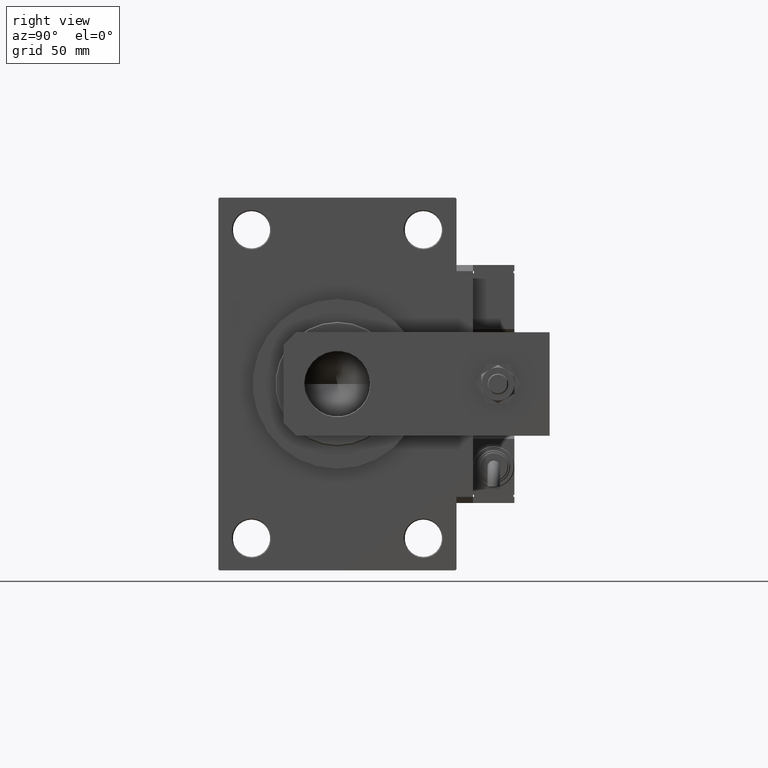
[diagram: clean part render]
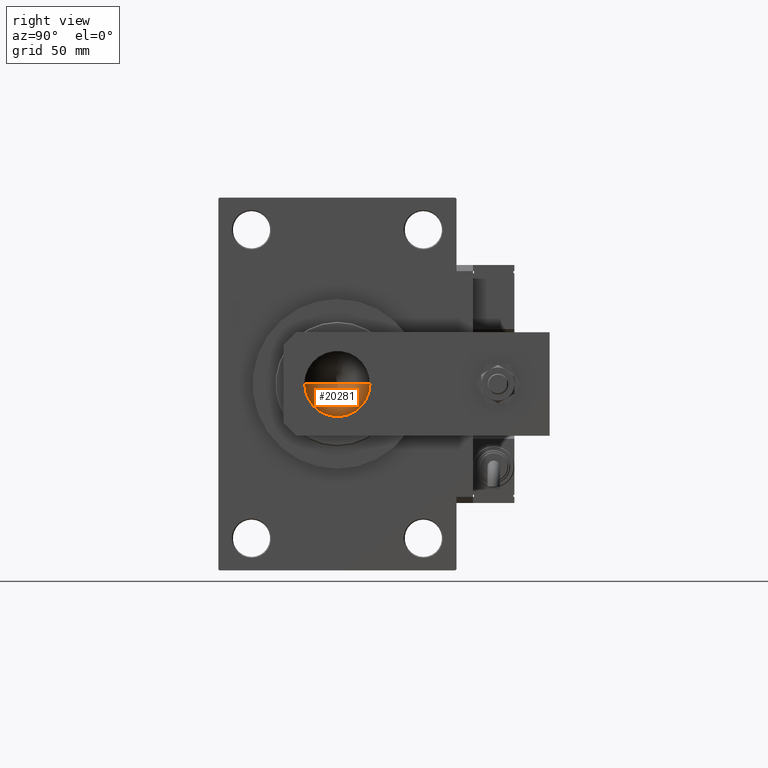
[diagram: same view with one face highlighted and labeled with its STEP entity id]
A machine part, right view. The second image highlights one B-rep face of the part: STEP entity #20281.
In plain terms, the highlighted conical surface has half-angle 59 deg.
Its self-contained STEP definition (entity closure, byte-faithful):
#1735 = CARTESIAN_POINT ( 'NONE',  ( 15.74999999999998934, 0.000000000000000000, 111.0000000000000142 ) ) ;
#1811 = EDGE_CURVE ( 'NONE', #13358, #13779, #23235, .T. ) ;
#2254 = ORIENTED_EDGE ( 'NONE', *, *, #49909, .F. ) ;
#2867 = AXIS2_PLACEMENT_3D ( 'NONE', #9329, #55361, #12982 ) ;
#6805 = ORIENTED_EDGE ( 'NONE', *, *, #30809, .T. ) ;
#9150 = CONICAL_SURFACE ( 'NONE', #2867, 15.74999999999998934, 1.029744258676652979 ) ;
#9329 = CARTESIAN_POINT ( 'NONE',  ( 0.000000000000000000, 0.000000000000000000, 111.0000000000000142 ) ) ;
#11577 = CARTESIAN_POINT ( 'NONE',  ( 0.000000000000000000, 0.000000000000000000, 111.0000000000000142 ) ) ;
#12946 = VECTOR ( 'NONE', #17571, 1000.000000000000000 ) ;
#12982 = DIRECTION ( 'NONE',  ( 1.000000000000000000, 0.000000000000000000, 0.000000000000000000 ) ) ;
#13358 = VERTEX_POINT ( 'NONE', #52378 ) ;
#13538 = VERTEX_POINT ( 'NONE', #44492 ) ;
#13779 = VERTEX_POINT ( 'NONE', #50856 ) ;
#17571 = DIRECTION ( 'NONE',  ( -0.8571673007021115565, 1.049727191138617710E-16, 0.5150380749100554878 ) ) ;
#18868 = DIRECTION ( 'NONE',  ( 0.8571673007021115565, 0.000000000000000000, 0.5150380749100554878 ) ) ;
#19425 = LINE ( 'NONE', #1735, #45312 ) ;
#20281 = ADVANCED_FACE ( 'NONE', ( #47758 ), #9150, .F. ) ;
#23235 = CIRCLE ( 'NONE', #42971, 15.74999999999998934 ) ;
#30278 = ORIENTED_EDGE ( 'NONE', *, *, #1811, .T. ) ;
#30809 = EDGE_CURVE ( 'NONE', #13538, #13358, #19425, .T. ) ;
#35812 = LINE ( 'NONE', #40274, #12946 ) ;
#37690 = DIRECTION ( 'NONE',  ( 1.000000000000000000, 0.000000000000000000, 0.000000000000000000 ) ) ;
#40274 = CARTESIAN_POINT ( 'NONE',  ( -15.74999999999998934, 1.928818708657080161E-15, 111.0000000000000142 ) ) ;
#42971 = AXIS2_PLACEMENT_3D ( 'NONE', #11577, #45798, #37690 ) ;
#44492 = CARTESIAN_POINT ( 'NONE',  ( -1.497379240617067851E-14, 0.000000000000000000, 101.5364452503159214 ) ) ;
#45312 = VECTOR ( 'NONE', #18868, 1000.000000000000000 ) ;
#45798 = DIRECTION ( 'NONE',  ( -0.000000000000000000, -0.000000000000000000, 1.000000000000000000 ) ) ;
#47758 = FACE_OUTER_BOUND ( 'NONE', #50137, .T. ) ;
#49909 = EDGE_CURVE ( 'NONE', #13538, #13779, #35812, .T. ) ;
#50137 = EDGE_LOOP ( 'NONE', ( #2254, #6805, #30278 ) ) ;
#50856 = CARTESIAN_POINT ( 'NONE',  ( -15.74999999999998934, 1.928818708657080161E-15, 111.0000000000000142 ) ) ;
#52378 = CARTESIAN_POINT ( 'NONE',  ( 15.74999999999998934, 0.000000000000000000, 111.0000000000000142 ) ) ;
#55361 = DIRECTION ( 'NONE',  ( -0.000000000000000000, -0.000000000000000000, 1.000000000000000000 ) ) ;